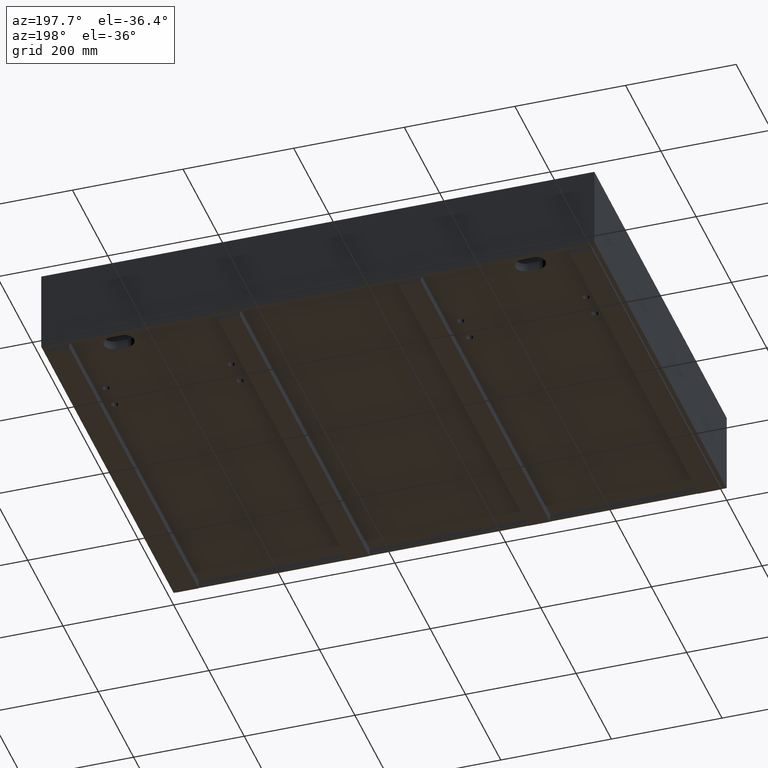
[diagram: clean part render]
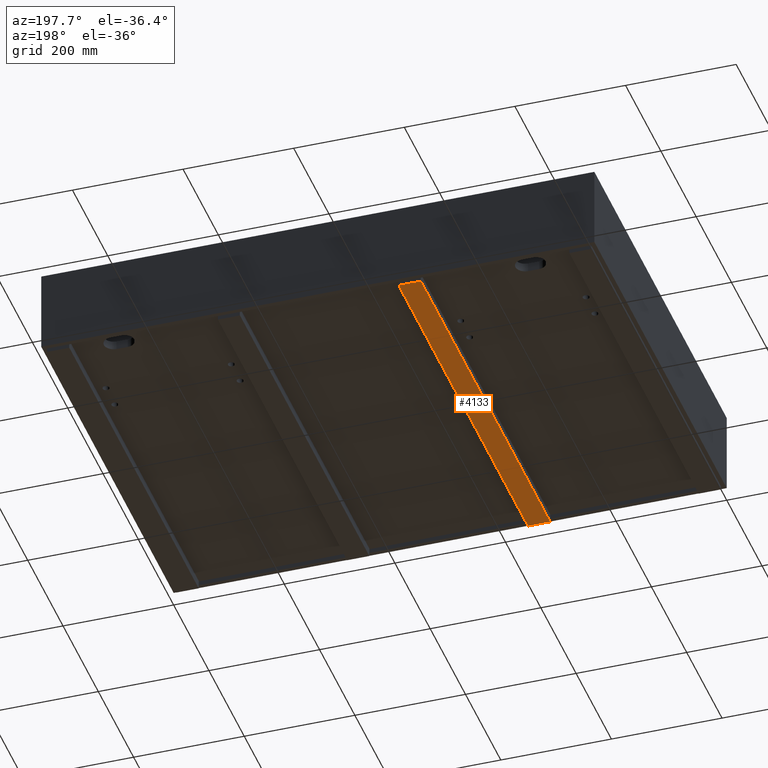
[diagram: same view with one face highlighted and labeled with its STEP entity id]
A machine part, auxiliary view. The second image highlights one B-rep face of the part: STEP entity #4133.
In plain terms, the highlighted planar face has unit normal (0, 0, -1).
Its self-contained STEP definition (entity closure, byte-faithful):
#60 = ORIENTED_EDGE ( 'NONE', *, *, #11391, .T. ) ;
#478 = CARTESIAN_POINT ( 'NONE',  ( 316.5033333300001459, 741.4999000000001388, -157.0000000000003126 ) ) ;
#564 = CARTESIAN_POINT ( 'NONE',  ( 316.5033333300000891, 8.499999999999952038, -157.0000000000003126 ) ) ;
#669 = CARTESIAN_POINT ( 'NONE',  ( 0.0000000000000000000, 0.0000000000000000000, -157.0000000000003126 ) ) ;
#1964 = VECTOR ( 'NONE', #6225, 1000.000000000000000 ) ;
#2271 = ORIENTED_EDGE ( 'NONE', *, *, #2536, .T. ) ;
#2536 = EDGE_CURVE ( 'NONE', #6936, #14242, #17885, .T. ) ;
#4024 = EDGE_LOOP ( 'NONE', ( #60, #16006, #4120, #2271 ) ) ;
#4120 = ORIENTED_EDGE ( 'NONE', *, *, #9248, .T. ) ;
#4133 = ADVANCED_FACE ( 'NONE', ( #7829 ), #13543, .T. ) ;
#4406 = EDGE_CURVE ( 'NONE', #7871, #12763, #5924, .T. ) ;
#4781 = DIRECTION ( 'NONE',  ( -1.514629162466674743E-16, -1.000000000000000000, 0.0000000000000000000 ) ) ;
#5001 = CARTESIAN_POINT ( 'NONE',  ( 356.5033333300001459, 741.4999000000001388, -157.0000000000003126 ) ) ;
#5577 = CARTESIAN_POINT ( 'NONE',  ( 356.5033333300000322, 8.499999999999952038, -157.0000000000003126 ) ) ;
#5924 = LINE ( 'NONE', #11670, #9364 ) ;
#6225 = DIRECTION ( 'NONE',  ( 7.573145812333373714E-17, 1.000000000000000000, 3.851859888774471706E-34 ) ) ;
#6410 = DIRECTION ( 'NONE',  ( 0.0000000000000000000, 0.0000000000000000000, -1.000000000000000000 ) ) ;
#6936 = VERTEX_POINT ( 'NONE', #9602 ) ;
#7829 = FACE_OUTER_BOUND ( 'NONE', #4024, .T. ) ;
#7871 = VERTEX_POINT ( 'NONE', #5577 ) ;
#9248 = EDGE_CURVE ( 'NONE', #12763, #6936, #13352, .T. ) ;
#9364 = VECTOR ( 'NONE', #17391, 1000.000000000000000 ) ;
#9602 = CARTESIAN_POINT ( 'NONE',  ( 316.5033333300001459, 741.4999000000001388, -157.0000000000003126 ) ) ;
#9888 = AXIS2_PLACEMENT_3D ( 'NONE', #669, #6410, #12143 ) ;
#10759 = DIRECTION ( 'NONE',  ( 1.000000000000000000, -3.216981146715663810E-35, 0.0000000000000000000 ) ) ;
#11391 = EDGE_CURVE ( 'NONE', #14242, #7871, #11934, .T. ) ;
#11670 = CARTESIAN_POINT ( 'NONE',  ( 356.5033333300000322, 8.499999999999952038, -157.0000000000003126 ) ) ;
#11934 = LINE ( 'NONE', #17654, #14760 ) ;
#12143 = DIRECTION ( 'NONE',  ( -1.000000000000000000, 3.216981146715663810E-35, 0.0000000000000000000 ) ) ;
#12763 = VERTEX_POINT ( 'NONE', #564 ) ;
#13352 = LINE ( 'NONE', #478, #1964 ) ;
#13543 = PLANE ( 'NONE',  #9888 ) ;
#14242 = VERTEX_POINT ( 'NONE', #18615 ) ;
#14429 = VECTOR ( 'NONE', #10759, 1000.000000000000000 ) ;
#14760 = VECTOR ( 'NONE', #4781, 1000.000000000000000 ) ;
#16006 = ORIENTED_EDGE ( 'NONE', *, *, #4406, .T. ) ;
#17391 = DIRECTION ( 'NONE',  ( -1.000000000000000000, 1.301042606982606060E-16, 0.0000000000000000000 ) ) ;
#17654 = CARTESIAN_POINT ( 'NONE',  ( 356.5033333300001459, 741.4999000000001388, -157.0000000000003126 ) ) ;
#17885 = LINE ( 'NONE', #5001, #14429 ) ;
#18615 = CARTESIAN_POINT ( 'NONE',  ( 356.5033333300001459, 741.4999000000001388, -157.0000000000003126 ) ) ;